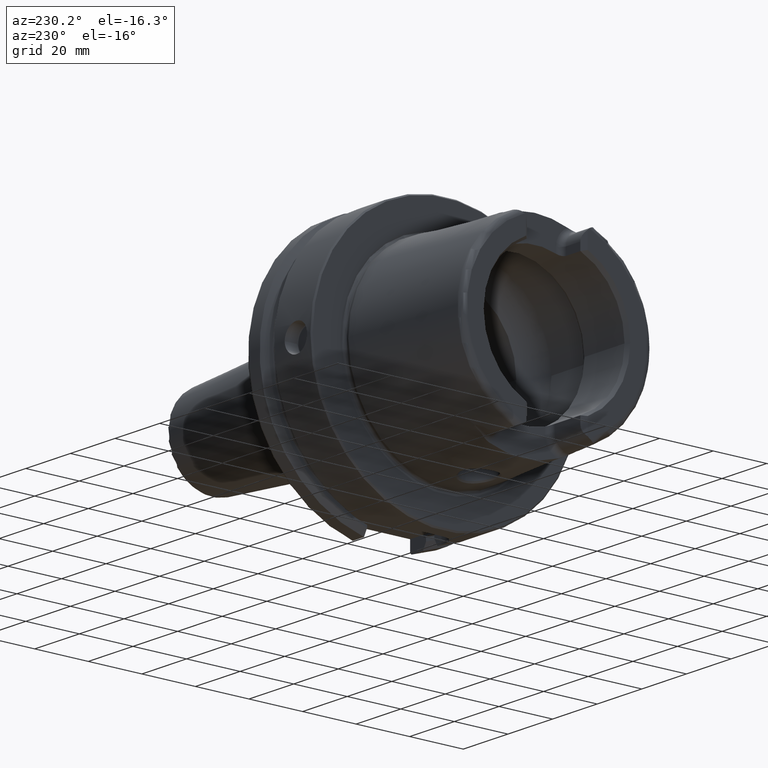
[diagram: clean part render]
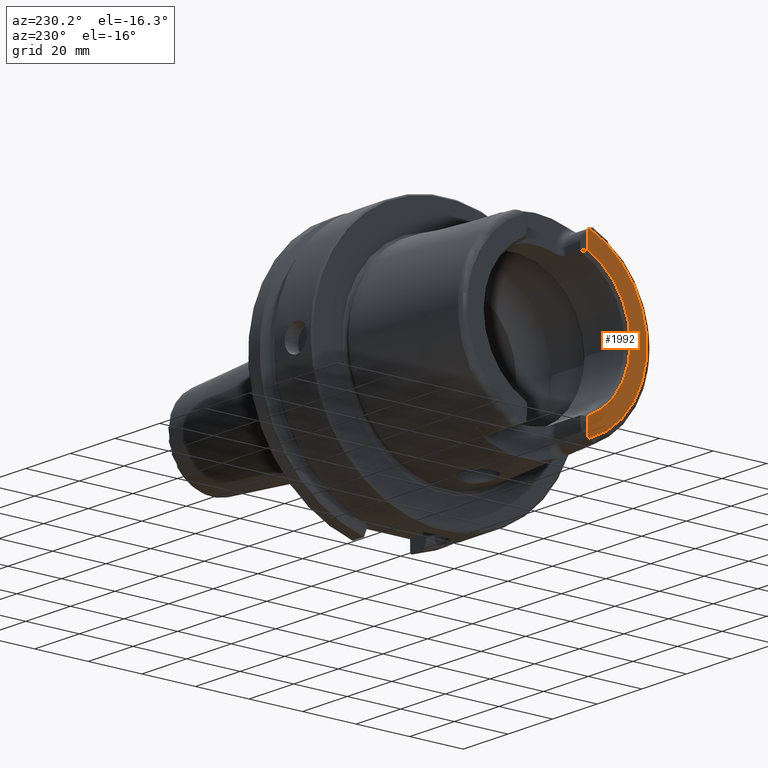
[diagram: same view with one face highlighted and labeled with its STEP entity id]
A machine part, auxiliary view. The second image highlights one B-rep face of the part: STEP entity #1992.
In plain terms, the highlighted planar face has unit normal (-1, 0, 0).
Its self-contained STEP definition (entity closure, byte-faithful):
#105=PLANE('',#2170);
#230=FACE_OUTER_BOUND('',#355,.T.);
#355=EDGE_LOOP('',(#1424,#1425,#1426,#1427,#1428,#1429));
#484=LINE('',#3147,#591);
#486=LINE('',#3166,#593);
#591=VECTOR('',#2500,10.);
#593=VECTOR('',#2522,10.);
#699=CIRCLE('',#2166,27.3660254037844);
#702=CIRCLE('',#2171,4.88);
#703=CIRCLE('',#2172,33.6001839277785);
#704=CIRCLE('',#2173,4.88);
#848=VERTEX_POINT('',#3144);
#849=VERTEX_POINT('',#3146);
#851=VERTEX_POINT('',#3152);
#854=VERTEX_POINT('',#3160);
#855=VERTEX_POINT('',#3162);
#856=VERTEX_POINT('',#3164);
#1066=EDGE_CURVE('',#848,#849,#484,.T.);
#1069=EDGE_CURVE('',#849,#851,#699,.T.);
#1073=EDGE_CURVE('',#848,#854,#702,.T.);
#1074=EDGE_CURVE('',#855,#854,#703,.T.);
#1075=EDGE_CURVE('',#855,#856,#704,.T.);
#1076=EDGE_CURVE('',#851,#856,#486,.T.);
#1424=ORIENTED_EDGE('',*,*,#1066,.F.);
#1425=ORIENTED_EDGE('',*,*,#1073,.T.);
#1426=ORIENTED_EDGE('',*,*,#1074,.F.);
#1427=ORIENTED_EDGE('',*,*,#1075,.T.);
#1428=ORIENTED_EDGE('',*,*,#1076,.F.);
#1429=ORIENTED_EDGE('',*,*,#1069,.F.);
#1992=ADVANCED_FACE('',(#230),#105,.T.);
#2166=AXIS2_PLACEMENT_3D('',#3153,#2506,#2507);
#2170=AXIS2_PLACEMENT_3D('',#3159,#2514,#2515);
#2171=AXIS2_PLACEMENT_3D('',#3161,#2516,#2517);
#2172=AXIS2_PLACEMENT_3D('',#3163,#2518,#2519);
#2173=AXIS2_PLACEMENT_3D('',#3165,#2520,#2521);
#2500=DIRECTION('',(0.,0.,1.));
#2506=DIRECTION('center_axis',(-1.,0.,0.));
#2507=DIRECTION('ref_axis',(0.,-1.,0.));
#2514=DIRECTION('center_axis',(-1.,0.,0.));
#2515=DIRECTION('ref_axis',(0.,0.,1.));
#2516=DIRECTION('center_axis',(-1.,0.,0.));
#2517=DIRECTION('ref_axis',(0.,-1.,0.));
#2518=DIRECTION('center_axis',(1.,0.,0.));
#2519=DIRECTION('ref_axis',(0.,0.,-1.));
#2520=DIRECTION('center_axis',(-1.,0.,0.));
#2521=DIRECTION('ref_axis',(0.,0.477884921181369,-0.878422450821629));
#2522=DIRECTION('',(0.,0.,1.));
#3144=CARTESIAN_POINT('',(-50.,-11.51,-30.8899431813596));
#3146=CARTESIAN_POINT('',(-50.,-11.51,-24.8277918148307));
#3147=CARTESIAN_POINT('',(-50.,-11.51,-13.685));
#3152=CARTESIAN_POINT('',(-50.,-11.51,24.8277918148307));
#3153=CARTESIAN_POINT('Origin',(-50.,0.,0.));
#3159=CARTESIAN_POINT('Origin',(-50.,33.6001839277785,0.));
#3160=CARTESIAN_POINT('',(-50.,-12.0743049948301,-31.355757348091));
#3161=CARTESIAN_POINT('Origin',(-50.,-14.89,-27.37));
#3162=CARTESIAN_POINT('',(-50.,-12.0743049948301,31.355757348091));
#3163=CARTESIAN_POINT('Origin',(-50.,0.,0.));
#3164=CARTESIAN_POINT('',(-50.,-11.51,30.8899431813596));
#3165=CARTESIAN_POINT('Origin',(-50.,-14.89,27.37));
#3166=CARTESIAN_POINT('',(-50.,-11.51,9.));